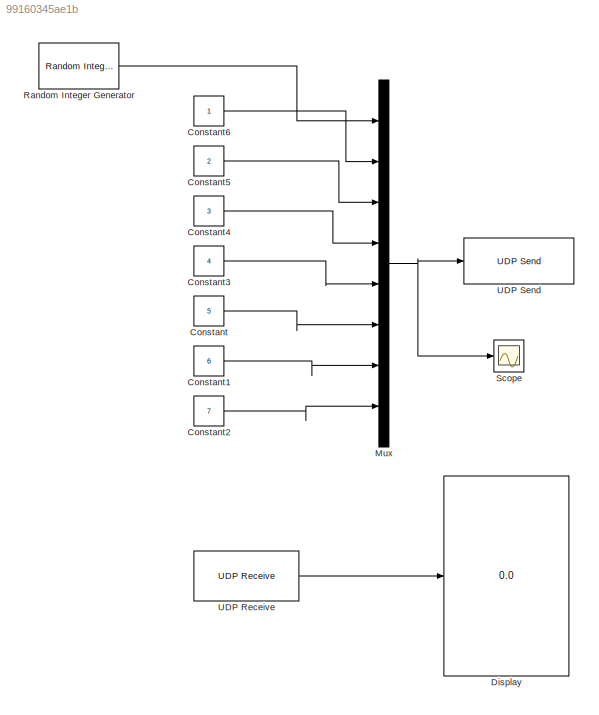
MODEL slx_99160345ae1b
KIND model
CONFIG AbsTol = auto
CONFIG EnableMultiTasking = on
CONFIG FixedStep = 0.1
CONFIG MaxStep = auto
CONFIG MinStep = auto
CONFIG RelTol = 1e-3
CONFIG SampleTimeConstraint = Unconstrained
CONFIG Solver = ode4
CONFIG SolverName = ode4
CONFIG StartTime = 0.0
CONFIG StopTime = inf
BLOCK [Constant] Constant
  OutDataTypeStr = double
  Value = 5
BLOCK [Constant] Constant1
  OutDataTypeStr = double
  Value = 6
BLOCK [Constant] Constant2
  OutDataTypeStr = double
  Value = 7
BLOCK [Constant] Constant3
  OutDataTypeStr = double
  Value = 4
BLOCK [Constant] Constant4
  OutDataTypeStr = double
  Value = 3
BLOCK [Constant] Constant5
  OutDataTypeStr = double
  Value = 2
BLOCK [Constant] Constant6
  OutDataTypeStr = double
BLOCK [Display] Display
  Decimation = 1
  Format = long
  Ports = [1]
BLOCK [Mux] Mux
  DisplayOption = bar
  Inputs = 8
  Ports = [8, 1]
BLOCK [Reference] Random Integer Generator  REF=commrandsrc3/Random Integer
Generator
  Ports = [0, 1]
  SourceBlock = commrandsrc3/Random Integer\nGenerator
  SourceProductBaseCode = CM
  SourceProductName = Communications System Toolbox
  SourceType = Random Integer Generator
BLOCK [Scope] Scope
  Floating = off
  NumInputPorts = 1
  Ports = [1]
  ScopeSpecificationString = C++SS(StrPVP('Location','[2843, 666, 3432, 1002]'),StrPVP('Open','off'),MxPVP('AxesTitles',53,'struct(''axes1'',''%<SignalLabel>'')'),MxPVP('ScopeGraphics',56,'struct(''FigureColor'',''[0.5 0.5 0.5]'',''AxesColor'',''[0 0 0]'',''AxesTickColor'',''[1 1 1]'',''LineColors'',''[1 1 0;1 0 1;0 1 1;1 0 0;0 1 0;0 0 1]'',''LineStyles'',''-|-|-|-|-|-'',''LineWidths'',''[0.5 0.5 0.5 0.5 0.5 0.5]'',''MarkerSt...<+242ch>
BLOCK [Reference] UDP Receive  REF=dspnetwork/UDP Receive
  Ports = [0, 1]
  SourceBlock = dspnetwork/UDP Receive
  SourceProductBaseCode = DS
  SourceProductName = DSP System Toolbox
  SourceType = UDP Receive
BLOCK [Reference] UDP Send  REF=instrumentlib/UDP Send
  Ports = [1]
  Priority = 2
  SourceBlock = instrumentlib/UDP Send
  SourceProductBaseCode = IC
  SourceProductName = Instrument Control Toolbox
  SourceType = UDP Send
LINE Constant1:1 -> Mux:7
LINE Constant2:1 -> Mux:8
LINE Constant3:1 -> Mux:5
LINE Constant4:1 -> Mux:4
LINE Constant5:1 -> Mux:3
LINE Constant6:1 -> Mux:2
LINE Constant:1 -> Mux:6
NET Mux:1 -> Scope:1, UDP Send:1
LINE Random Integer Generator:1 -> Mux:1
LINE UDP Receive:1 -> Display:1
note: NET lines group one-source signal fan-out (src -> all destinations, sorted); 1:1 wires keep LINE
